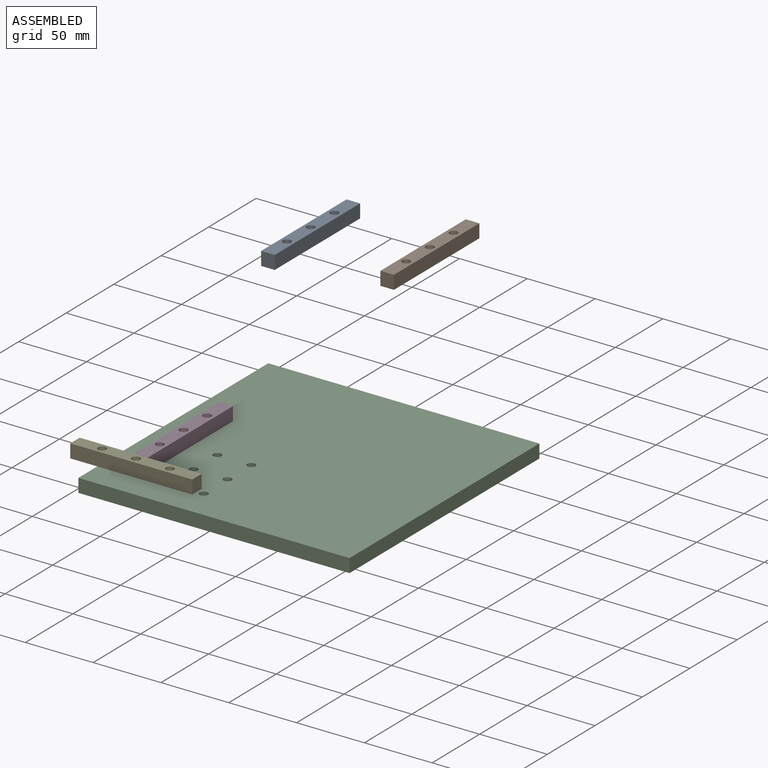
[diagram: assembled view]
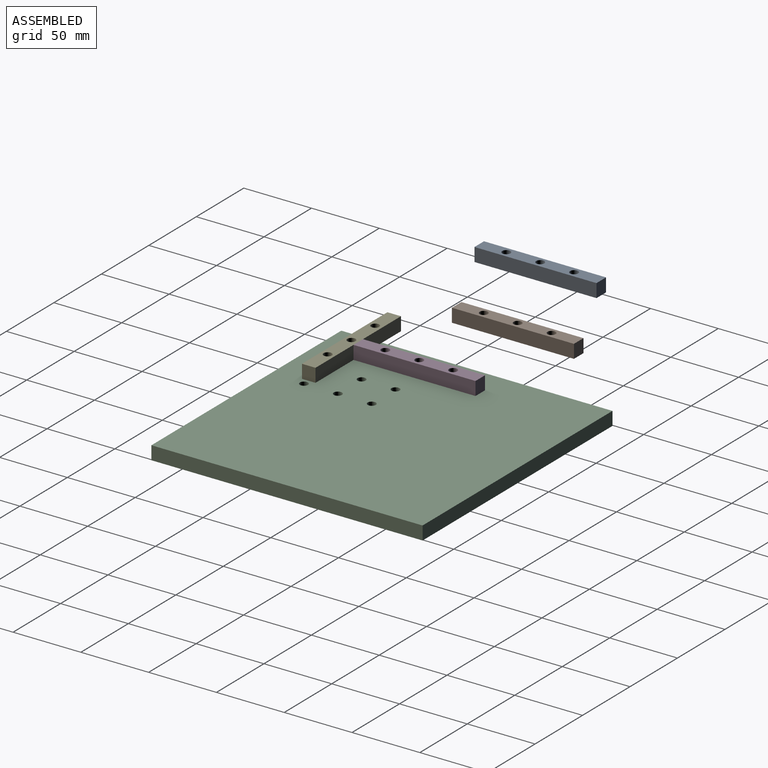
[diagram: assembled view, second angle]
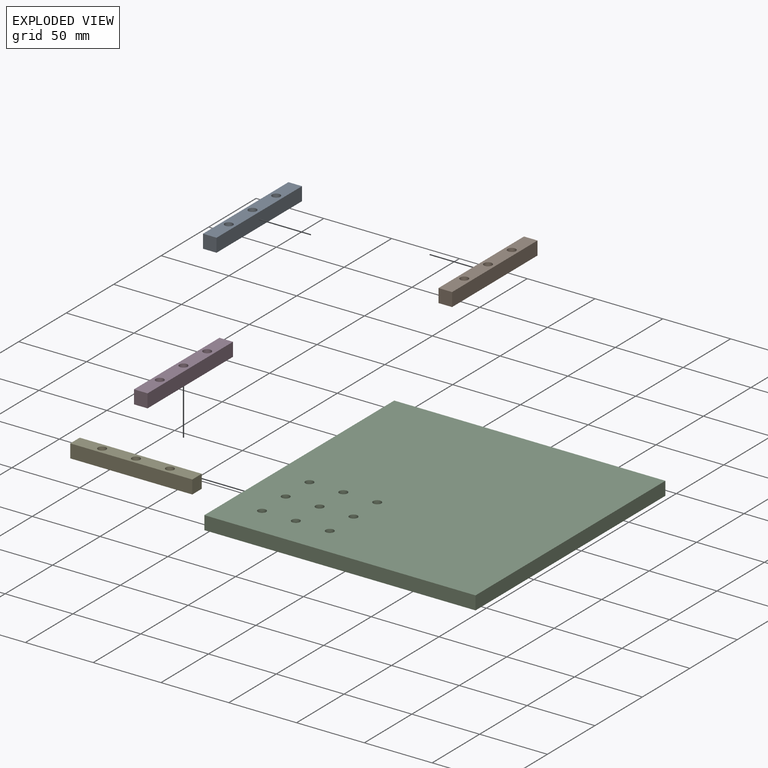
[diagram: exploded view]
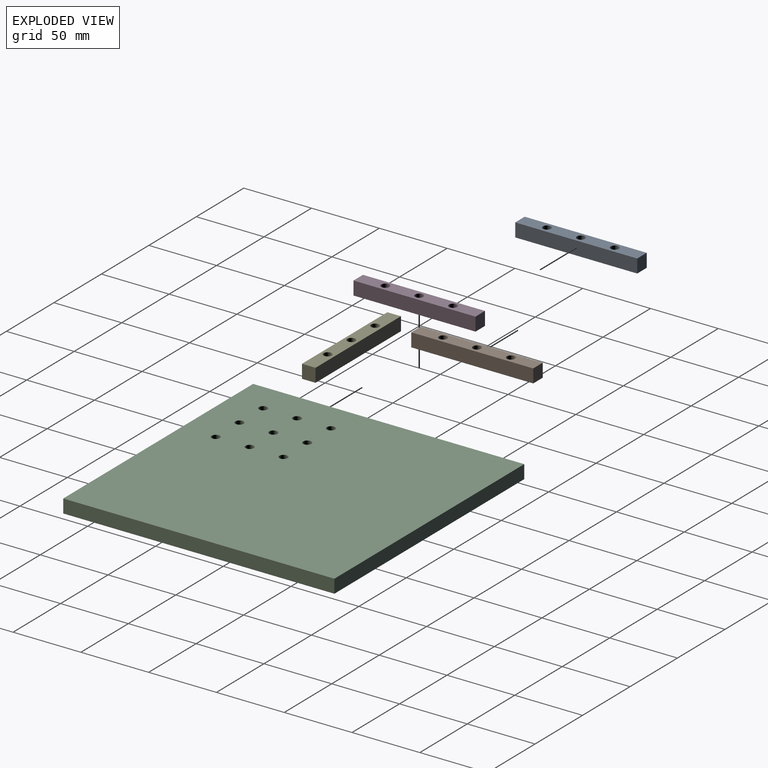
[diagram: exploded view, second angle]
ASSEMBLY  parts=5 mates=2
PART A: 9 faces, bbox 10x90x10 mm
  f0: plane 90x10mm, normal (-1,0,0), area 900mm2, adj f1,f3,f4,f5
  f1: plane 10x10mm, normal (0,-1,0), area 100mm2, adj f0,f2,f4,f5
  f2: plane 90x10mm, normal (1,0,0), area 900mm2, adj f1,f3,f4,f5
  f3: plane 10x10mm, normal (0,1,0), area 100mm2, adj f0,f2,f4,f5
  f4: plane 90x10mm, normal (0,0,1), area 815.2mm2, adj f0,f1,f2,f3,f6,f7,f8
  f5: plane 90x10mm, normal (0,0,-1), area 815.2mm2, adj f0,f1,f2,f3,f6,f7,f8
  f6: cylinder r=3mm len=10mm, axis (0,0,1), area 188.5mm2, adj f4,f5
  f7: cylinder r=3mm len=10mm, axis (0,0,1), area 188.5mm2, adj f4,f5
  f8: cylinder r=3mm len=10mm, axis (0,0,1), area 188.5mm2, adj f4,f5
PART B: same geometry as A
PART C: 15 faces, bbox 200x200x10 mm
  f0: plane 200x10mm, normal (0,1,0), area 2000mm2, adj f1,f12,f13,f14
  f1: plane 200x10mm, normal (-1,0,0), area 2000mm2, adj f0,f2,f13,f14
  f2: plane 200x10mm, normal (0,-1,0), area 2000mm2, adj f1,f12,f13,f14
  f3: cylinder r=3mm len=10mm, axis (0,0,-1), area 188.5mm2, adj f13,f14
  f4: cylinder r=3mm len=10mm, axis (0,0,-1), area 188.5mm2, adj f13,f14
  f5: cylinder r=3mm len=10mm, axis (0,0,-1), area 188.5mm2, adj f13,f14
  f6: cylinder r=3mm len=10mm, axis (0,0,-1), area 188.5mm2, adj f13,f14
  f7: cylinder r=3mm len=10mm, axis (0,0,-1), area 188.5mm2, adj f13,f14
  f8: cylinder r=3mm len=10mm, axis (0,0,-1), area 188.5mm2, adj f13,f14
  f9: cylinder r=3mm len=10mm, axis (0,0,-1), area 188.5mm2, adj f13,f14
  f10: cylinder r=3mm len=10mm, axis (0,0,-1), area 188.5mm2, adj f13,f14
  f11: cylinder r=3mm len=10mm, axis (0,0,-1), area 188.5mm2, adj f13,f14
  f12: plane 200x10mm, normal (1,0,0), area 2000mm2, adj f0,f2,f13,f14
  f13: plane 200x200mm, normal (0,0,1), area 39745.5mm2, adj f0,f1,f2,f3,f4,f5,f6,f7
  f14: plane 200x200mm, normal (0,0,-1), area 39745.5mm2, adj f0,f1,f2,f3,f4,f5,f6,f7
PART D: same geometry as A
PART E: same geometry as A
PLACE A t=(51.17,118.08,140.29)mm
PLACE B t=(117.97,148.23,133.38)mm
PLACE C rot(axis=(0,0,1),0deg) t=(10.16,-15.87,29.21)mm
PLACE D rot(axis=(0,0,1),0deg) t=(30.16,14.13,39.21)mm
PLACE E rot(axis=(0,0,-1),90deg) t=(-9.84,14.13,39.21)mm
MATE fastened D.f8 <-> C.f4  axis (0,0,-1) through (35.16,34.13,39.21)mm
MATE fastened E.f7 <-> C.f3  axis (0,0,1) through (35.16,9.13,39.21)mm
